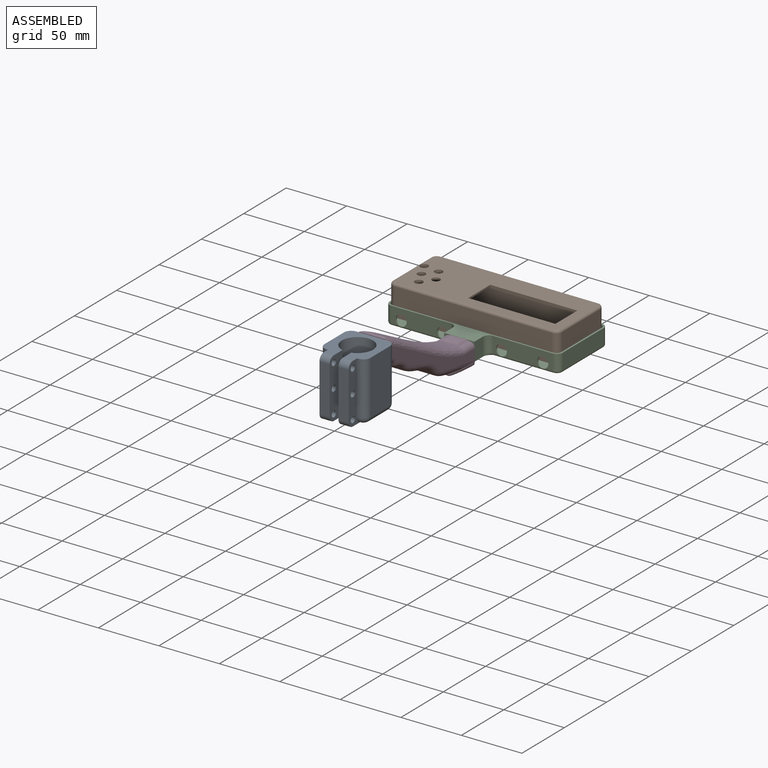
[diagram: assembled view]
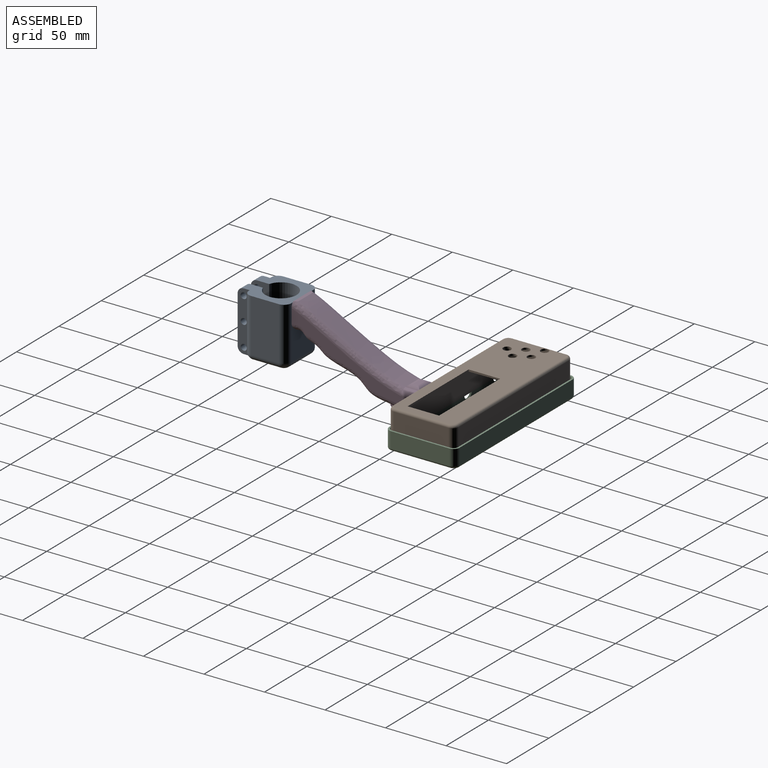
[diagram: assembled view, second angle]
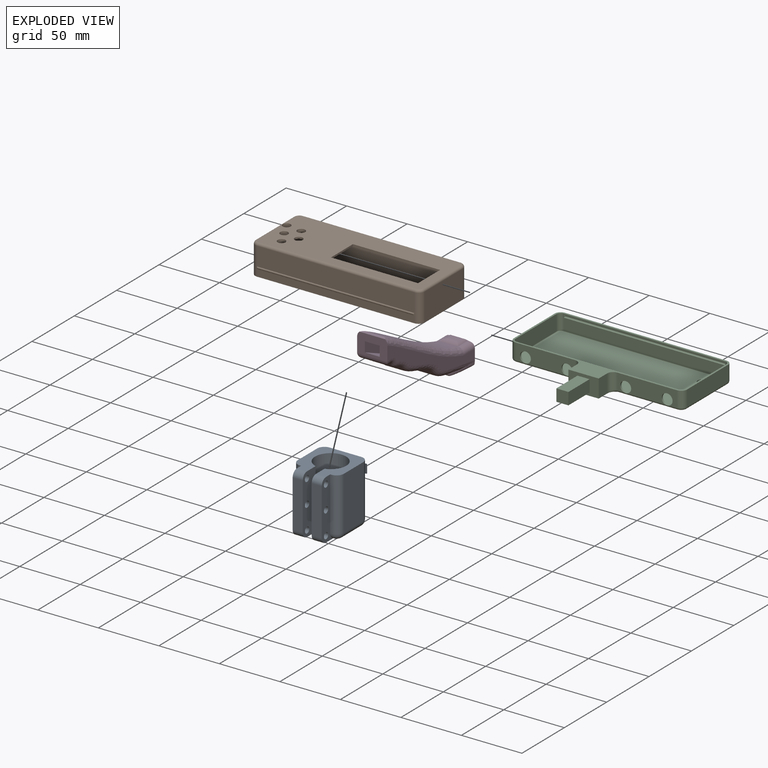
[diagram: exploded view]
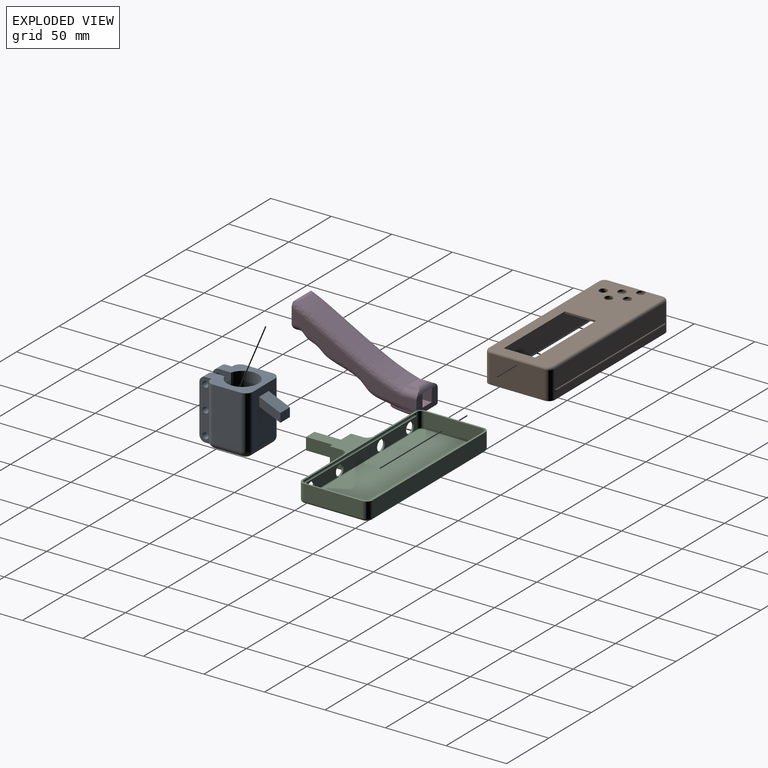
[diagram: exploded view, second angle]
ASSEMBLY  parts=4 mates=3
PART A: 43 faces, bbox 38.1x62.5x49 mm
  f0: plane 35x10.77mm, normal (0,0,-1), area 172.5mm2, adj f8,f9,f10,f21,f33,f34,f35,f36
  f1: plane 40x38.13mm, normal (0,0,1), area 829.2mm2, adj f3,f4,f5,f6,f7,f8,f9,f10
  f2: plane 35x10.98mm, normal (0,0,-1), area 177.5mm2, adj f8,f12,f13,f20,f29,f30,f31,f32
  f3: plane 44.03x1.03mm, normal (0,-1,0), area 45.5mm2, adj f1,f10,f18,f37
  f4: plane 44.03x23mm, normal (1,0,0), area 1012.8mm2, adj f1,f16,f18,f35
  f5: plane 44.03x23mm, normal (-1,0,0), area 1012.8mm2, adj f1,f15,f17,f31
  f6: plane 44.03x1.03mm, normal (0,-1,0), area 45.5mm2, adj f1,f13,f17,f29
  f7: plane 44.03x26.13mm, normal (0,1,0), area 1068.4mm2, adj f1,f15,f16,f33,f38,f39,f40,f41
  f8: cylinder r=12.9mm len=49.03mm, axis (0,0,1), area 3609.3mm2, adj f0,f1,f2,f9,f12,f33
  f9: plane 49.03x15.1mm, normal (-1,0,0), area 670.2mm2, adj f0,f1,f8,f11,f21,f22,f26,f27
  f10: plane 49.03x15mm, normal (1,0,0), area 425.3mm2, adj f0,f1,f3,f11,f21,f22,f26,f27
  f11: plane 39.03x8.36mm, normal (0,-1,0), area 326.3mm2, adj f9,f10,f21,f22
  f12: plane 49.03x15.16mm, normal (1,0,0), area 673.2mm2, adj f1,f2,f8,f14,f19,f20,f23,f24
  f13: plane 49.03x15mm, normal (-1,0,0), area 425.3mm2, adj f1,f2,f6,f14,f19,f20,f23,f24
  f14: plane 39.03x8.36mm, normal (0,-1,0), area 326.3mm2, adj f12,f13,f19,f20
  f15: cylinder r=6mm len=44.03mm, axis (0,0,-1), area 415mm2, adj f1,f5,f7,f32
  f16: cylinder r=6mm len=44.03mm, axis (0,0,1), area 415mm2, adj f1,f4,f7,f34
  f17: cylinder r=6mm len=44.03mm, axis (0,0,1), area 415mm2, adj f1,f5,f6,f30
  f18: cylinder r=6mm len=44.03mm, axis (0,0,-1), area 415mm2, adj f1,f3,f4,f36
  f19: cylinder r=5mm len=8.36mm, axis (1,0,0), area 65.7mm2, adj f1,f12,f13,f14
  f20: cylinder r=5mm len=8.36mm, axis (-1,0,0), area 65.7mm2, adj f2,f12,f13,f14
  f21: cylinder r=5mm len=8.36mm, axis (-1,0,0), area 65.7mm2, adj f0,f9,f10,f11
  f22: cylinder r=5mm len=8.36mm, axis (1,0,0), area 65.7mm2, adj f1,f9,f10,f11
  f23: cylinder r=2.52mm len=8.36mm, axis (-1,0,0), area 132.1mm2, adj f12,f13
  f24: cylinder r=2.52mm len=8.36mm, axis (-1,0,0), area 132.1mm2, adj f12,f13
  f25: cylinder r=2.52mm len=8.36mm, axis (-1,0,0), area 132.1mm2, adj f12,f13
  f26: cylinder r=2.52mm len=8.36mm, axis (-1,0,0), area 132.1mm2, adj f9,f10
  f27: cylinder r=2.52mm len=8.36mm, axis (-1,0,0), area 132.1mm2, adj f9,f10
  f28: cylinder r=2.52mm len=8.36mm, axis (-1,0,0), area 132.1mm2, adj f9,f10
  f29: cylinder r=5mm len=5mm, axis (-1,0,0), area 8.1mm2, adj f2,f6,f13,f30
  f30: torus R=1mm, axis (0,0,1), area 51.6mm2, adj f2,f17,f29,f31
  f31: cylinder r=5mm len=23mm, axis (0,1,0), area 180.6mm2, adj f2,f5,f30,f32
  f32: torus R=1mm, axis (0,0,1), area 51.6mm2, adj f2,f15,f31,f33
  f33: cylinder r=5mm len=26.13mm, axis (1,0,0), area 203.5mm2, adj f0,f2,f7,f8,f32,f34
  f34: torus R=1mm, axis (0,0,1), area 51.6mm2, adj f0,f16,f33,f35
  f35: cylinder r=5mm len=23mm, axis (0,-1,0), area 180.6mm2, adj f0,f4,f34,f36
  f36: torus R=1mm, axis (0,0,1), area 51.6mm2, adj f0,f18,f35,f37
  f37: cylinder r=5mm len=5mm, axis (-1,0,0), area 8.1mm2, adj f0,f3,f10,f36
  f38: plane 17.54x11.25mm, normal (0,0.39,0.92), area 214.4mm2, adj f7,f39,f41,f42
  f39: plane 17.54x14.72mm, normal (-1,0,0), area 127.8mm2, adj f7,f38,f40,f42
  f40: plane 17.54x11.25mm, normal (0,-0.39,-0.92), area 214.4mm2, adj f7,f39,f41,f42
  f41: plane 17.54x14.72mm, normal (1,0,0), area 127.8mm2, adj f7,f38,f40,f42
  f42: plane 11.25x7.29mm, normal (0,1,0), area 82mm2, adj f38,f39,f40,f41
PART B: 48 faces, bbox 140.8x56.2x25 mm
  f0: plane 130x15.41mm, normal (0,1,0), area 2003.3mm2, adj f9,f12,f37,f46
  f1: plane 130x5.93mm, normal (0,-1,0), area 770.9mm2, adj f3,f10,f11,f40
  f2: plane 137x52mm, normal (0,0,-1), area 5075.6mm2, adj f13,f14,f15,f16,f17,f18,f19,f20
  f3: plane 140x55mm, normal (0,0,-1), area 565.1mm2, adj f1,f4,f5,f7,f9,f10,f11,f12
  f4: plane 130x5.93mm, normal (0,1,0), area 770.9mm2, adj f3,f9,f12,f45
  f5: plane 45x23mm, normal (-1,0,0), area 1035mm2, adj f3,f9,f10,f33
  f6: plane 130x15.41mm, normal (0,-1,0), area 2003.3mm2, adj f10,f11,f30,f41
  f7: plane 45x23mm, normal (1,0,0), area 1035mm2, adj f3,f11,f12,f34
  f8: plane 136x51mm, normal (0,0,1), area 4890.8mm2, adj f21,f22,f23,f24,f25,f26,f27,f28
  f9: cylinder r=5mm len=23mm, axis (0,0,-1), area 180.6mm2, adj f0,f3,f4,f5,f35,f44
  f10: cylinder r=5mm len=23mm, axis (0,0,1), area 180.6mm2, adj f1,f3,f5,f6,f31,f39
  f11: cylinder r=5mm len=23mm, axis (0,0,-1), area 180.6mm2, adj f1,f3,f6,f7,f32,f42
  f12: cylinder r=5mm len=23mm, axis (0,0,1), area 180.6mm2, adj f0,f3,f4,f7,f36,f47
  f13: plane 130x23.5mm, normal (0,-1,0), area 3055mm2, adj f2,f3,f17,f20
  f14: plane 45x23.5mm, normal (1,0,0), area 1057.5mm2, adj f2,f3,f17,f18
  f15: plane 130x23.5mm, normal (0,1,0), area 3055mm2, adj f2,f3,f18,f19
  f16: plane 45x23.5mm, normal (-1,0,0), area 1057.5mm2, adj f2,f3,f19,f20
  f17: cylinder r=3.5mm len=23.5mm, axis (0,0,-1), area 129.2mm2, adj f2,f3,f13,f14
  f18: cylinder r=3.5mm len=23.5mm, axis (0,0,1), area 129.2mm2, adj f2,f3,f14,f15
  f19: cylinder r=3.5mm len=23.5mm, axis (0,0,-1), area 129.2mm2, adj f2,f3,f15,f16
  f20: cylinder r=3.5mm len=23.5mm, axis (0,0,1), area 129.2mm2, adj f2,f3,f13,f16
  f21: cylinder r=3.25mm len=6.5mm, axis (0,0,1), area 30.6mm2, adj f2,f8
  f22: cylinder r=3.25mm len=6.5mm, axis (0,0,1), area 30.6mm2, adj f2,f8
  f23: cylinder r=3.25mm len=6.5mm, axis (0,0,1), area 30.6mm2, adj f2,f8
  f24: cylinder r=3.25mm len=6.5mm, axis (0,0,1), area 30.6mm2, adj f2,f8,f33
  f25: cylinder r=3.25mm len=6.5mm, axis (0,0,1), area 30.6mm2, adj f2,f8
  f26: plane 26x1.5mm, normal (1,0,0), area 39mm2, adj f2,f8,f27,f28
  f27: plane 72x1.5mm, normal (0,-1,0), area 108mm2, adj f2,f8,f26,f29
  f28: plane 72x1.5mm, normal (0,1,0), area 108mm2, adj f2,f8,f26,f29
  f29: plane 26x1.5mm, normal (-1,0,0), area 39mm2, adj f2,f8,f27,f28
  f30: cylinder r=2mm len=130mm, axis (1,0,0), area 408.4mm2, adj f6,f8,f31,f32
  f31: torus R=3mm, axis (0,0,1), area 21.1mm2, adj f8,f10,f30,f33
  f32: torus R=3mm, axis (0,0,1), area 21.1mm2, adj f8,f11,f30,f34
  f33: cylinder r=2mm len=45mm, axis (0,-1,0), area 141mm2, adj f5,f8,f24,f31,f35
  f34: cylinder r=2mm len=45mm, axis (0,1,0), area 141.4mm2, adj f7,f8,f32,f36
  f35: torus R=3mm, axis (0,0,1), area 21.1mm2, adj f8,f9,f33,f37
  f36: torus R=3mm, axis (0,0,1), area 21.1mm2, adj f8,f12,f34,f37
  f37: cylinder r=2mm len=130mm, axis (-1,0,0), area 408.4mm2, adj f0,f8,f35,f36
  f38: plane 128.53x0.19mm, normal (0,-1,0), area 24.5mm2, adj f39,f40,f41,f42
  f39: cylinder r=0.75mm len=1.66mm, axis (0,0,-1), area 1.1mm2, adj f10,f38,f40,f41
  f40: cylinder r=0.75mm len=130mm, axis (1,0,0), area 132.8mm2, adj f1,f38,f39,f42
  f41: cylinder r=0.75mm len=130mm, axis (1,0,0), area 132.8mm2, adj f6,f38,f39,f42
  f42: cylinder r=0.75mm len=1.66mm, axis (0,0,1), area 1.1mm2, adj f11,f38,f40,f41
  f43: plane 128.53x0.19mm, normal (0,1,0), area 24.5mm2, adj f44,f45,f46,f47
  f44: cylinder r=0.75mm len=1.66mm, axis (0,0,-1), area 1.1mm2, adj f9,f43,f45,f46
  f45: cylinder r=0.75mm len=130mm, axis (1,0,0), area 132.7mm2, adj f4,f43,f44,f47
  f46: cylinder r=0.75mm len=130mm, axis (1,0,0), area 132.7mm2, adj f0,f43,f44,f47
  f47: cylinder r=0.75mm len=1.66mm, axis (0,0,1), area 1.1mm2, adj f12,f43,f45,f46
PART C: 65 faces, bbox 144x98.6x24.4 mm
  f0: cylinder r=2mm len=49.1mm, axis (1,0,0), area 151.5mm2, adj f8,f16,f22,f46,f62,f63
  f1: plane 133.2x10.47mm, normal (0,1,0), area 1084.5mm2, adj f2,f5,f6,f7,f33,f36,f44,f49
  f2: cylinder r=0.55mm len=55.55mm, axis (1,0,0), area 44.8mm2, adj f1,f5,f7,f37,f62,f63
  f3: plane 133.2x9.92mm, normal (0,-1,0), area 1321.2mm2, adj f34,f35,f40,f52
  f4: plane 133.2x1.08mm, normal (0,1,0), area 144mm2, adj f17,f33,f36,f49
  f5: plane 0.55x0.55mm, normal (-1,0,0), area 0.1mm2, adj f1,f2,f7
  f6: plane 0.55x0.55mm, normal (1,0,0), area 0.1mm2, adj f1,f7,f44
  f7: plane 139.2x54.75mm, normal (0,0,1), area 7470.5mm2, adj f1,f2,f5,f6,f37,f38,f39,f40
  f8: plane 49.1x13mm, normal (0,-1,0), area 513.8mm2, adj f0,f17,f21,f45,f62,f63
  f9: plane 15x10.29mm, normal (1,0,0), area 150.2mm2, adj f10,f16,f17,f45,f46
  f10: plane 25x15mm, normal (0,-1,0), area 275mm2, adj f9,f11,f16,f17,f55,f56,f57,f58
  f11: plane 15x10.29mm, normal (-1,0,0), area 150.2mm2, adj f10,f16,f17,f47,f48
  f12: plane 49.1x13mm, normal (0,-1,0), area 513.8mm2, adj f17,f18,f29,f47,f60,f61
  f13: plane 48.2x13mm, normal (-1,0,0), area 626.6mm2, adj f17,f18,f19,f27
  f14: plane 133.2x13mm, normal (0,1,0), area 1731.6mm2, adj f17,f19,f20,f25
  f15: plane 48.2x13mm, normal (1,0,0), area 626.6mm2, adj f17,f20,f21,f23
  f16: plane 139.2x71.2mm, normal (0,0,-1), area 7904.2mm2, adj f0,f9,f10,f11,f22,f23,f24,f25
  f17: plane 143.2x73.2mm, normal (0,0,1), area 950.7mm2, adj f4,f8,f9,f10,f11,f12,f13,f14
  f18: cylinder r=5mm len=13mm, axis (0,0,1), area 102.1mm2, adj f12,f13,f17,f28
  f19: cylinder r=5mm len=13mm, axis (0,0,1), area 102.1mm2, adj f13,f14,f17,f26
  f20: cylinder r=5mm len=13mm, axis (0,0,1), area 102.1mm2, adj f14,f15,f17,f24
  f21: cylinder r=5mm len=13mm, axis (0,0,1), area 102.1mm2, adj f8,f15,f17,f22
  f22: torus R=3mm, axis (0,0,-1), area 21.1mm2, adj f0,f16,f21,f23
  f23: cylinder r=2mm len=48.2mm, axis (0,1,0), area 151.4mm2, adj f15,f16,f22,f24
  f24: torus R=3mm, axis (0,0,-1), area 21.1mm2, adj f16,f20,f23,f25
  f25: cylinder r=2mm len=133.2mm, axis (-1,0,0), area 418.5mm2, adj f14,f16,f24,f26
  f26: torus R=3mm, axis (0,0,-1), area 21.1mm2, adj f16,f19,f25,f27
  f27: cylinder r=2mm len=48.2mm, axis (0,-1,0), area 151.4mm2, adj f13,f16,f26,f28
  f28: torus R=3mm, axis (0,0,-1), area 21.1mm2, adj f16,f18,f27,f29
  f29: cylinder r=2mm len=49.1mm, axis (1,0,0), area 151.5mm2, adj f12,f16,f28,f48,f60,f61
  f30: plane 48.2x13mm, normal (1,0,0), area 626.6mm2, adj f17,f33,f34,f42
  f31: plane 133.2x1.08mm, normal (0,-1,0), area 144mm2, adj f17,f34,f35,f52
  f32: plane 48.2x13mm, normal (-1,0,0), area 626.6mm2, adj f17,f35,f36,f38
  f33: cylinder r=3.55mm len=13mm, axis (0,0,1), area 72.5mm2, adj f1,f4,f17,f30,f43,f50
  f34: cylinder r=3.55mm len=13mm, axis (0,0,1), area 72.5mm2, adj f3,f17,f30,f31,f41,f53
  f35: cylinder r=3.55mm len=13mm, axis (0,0,1), area 72.5mm2, adj f3,f17,f31,f32,f39,f54
  f36: cylinder r=3.55mm len=13mm, axis (0,0,1), area 72.5mm2, adj f1,f4,f17,f32,f37,f51
  f37: torus R=3mm, axis (0,0,-1), area 4.5mm2, adj f2,f7,f36,f38
  f38: cylinder r=0.55mm len=48.2mm, axis (0,1,0), area 41.6mm2, adj f7,f32,f37,f39
  f39: torus R=3mm, axis (0,0,-1), area 4.5mm2, adj f7,f35,f38,f40
  f40: cylinder r=0.55mm len=133.2mm, axis (-1,0,0), area 115.1mm2, adj f3,f7,f39,f41
  f41: torus R=3mm, axis (0,0,-1), area 4.5mm2, adj f7,f34,f40,f42
  f42: cylinder r=0.55mm len=48.2mm, axis (0,-1,0), area 41.6mm2, adj f7,f30,f41,f43
  f43: torus R=3mm, axis (0,0,-1), area 4.5mm2, adj f7,f33,f42,f44
  f44: cylinder r=0.55mm len=55.55mm, axis (1,0,0), area 44.8mm2, adj f1,f6,f7,f43,f60,f61
  f45: cylinder r=5mm len=13mm, axis (0,0,1), area 102.1mm2, adj f8,f9,f17,f46
  f46: torus R=7mm, axis (-1,0,0), area 17.8mm2, adj f0,f9,f16,f45
  f47: cylinder r=5mm len=13mm, axis (0,0,-1), area 102.1mm2, adj f11,f12,f17,f48
  f48: torus R=7mm, axis (-1,0,0), area 17.8mm2, adj f11,f16,f29,f47
  f49: cylinder r=1mm len=133.2mm, axis (1,0,0), area 415.5mm2, adj f1,f4,f50,f51
  f50: cylinder r=1mm len=2mm, axis (0,0,1), area 1.6mm2, adj f33,f49
  f51: cylinder r=1mm len=2mm, axis (0,0,-1), area 1.6mm2, adj f36,f49
  f52: cylinder r=1mm len=133.2mm, axis (1,0,0), area 415.3mm2, adj f3,f31,f53,f54
  f53: cylinder r=1mm len=2mm, axis (0,0,1), area 1.6mm2, adj f34,f52
  f54: cylinder r=1mm len=2mm, axis (0,0,-1), area 1.6mm2, adj f35,f52
  f55: plane 25x10mm, normal (0,0,-1), area 250mm2, adj f10,f56,f58,f59
  f56: plane 25x10mm, normal (1,0,0), area 250mm2, adj f10,f55,f57,f59
  f57: plane 25x10mm, normal (0,0,1), area 250mm2, adj f10,f56,f58,f59
  f58: plane 25x10mm, normal (-1,0,0), area 250mm2, adj f10,f55,f57,f59
  f59: plane 10x10mm, normal (0,-1,0), area 100mm2, adj f55,f56,f57,f58
  f60: cylinder r=4.5mm len=9mm, axis (0,-1,0), area 41mm2, adj f1,f12,f29,f44
  f61: cylinder r=4.5mm len=9mm, axis (0,-1,0), area 41mm2, adj f1,f12,f29,f44
  f62: cylinder r=4.5mm len=9mm, axis (0,-1,0), area 41mm2, adj f0,f1,f2,f8
  f63: cylinder r=4.5mm len=9mm, axis (0,-1,0), area 41mm2, adj f0,f1,f2,f8
  f64: cylinder r=5mm len=10mm, axis (0,0,-1), area 45.6mm2, adj f7,f16
PART D: 38 faces, bbox 26.1x117.8x63.7 mm
  f0: plane 103.27x50.43mm, normal (1,0,0), area 927.7mm2, adj f6,f10,f14,f15,f16,f17
  f1: plane 25x10.8mm, normal (-1,0,0), area 270mm2, adj f2,f4,f6,f7,f32
  f2: plane 25x10.8mm, normal (0,0,1), area 270mm2, adj f1,f3,f6,f7
  f3: plane 25x10.8mm, normal (1,0,0), area 270mm2, adj f2,f4,f6,f7,f32
  f4: plane 24.92x10.8mm, normal (0,0,-1), area 269.1mm2, adj f1,f3,f7,f32
  f5: plane 103.26x50.43mm, normal (-1,0,0), area 927.7mm2, adj f6,f10,f13,f15,f18,f19
  f6: plane 25.03x13.03mm, normal (0,1,0), area 217.1mm2, adj f0,f1,f2,f3,f5,f13,f14,f16
  f7: plane 10.8x10.8mm, normal (0,1,0), area 116.6mm2, adj f1,f2,f3,f4
  f8: extruded ~87.9x40.89mm, area 1457.3mm2, adj f9,f17,f19,f29
  f9: plane 22.37x3.95mm, normal (0,0,1), area 55.1mm2, adj f8,f10,f17,f19
  f10: plane 25.2x16.27mm, normal (0,-1,0), area 294.5mm2, adj f0,f5,f9,f15,f17,f19,f34,f35
  f11: extruded ~73.02x34.77mm, area 1235.1mm2, adj f12,f13,f14,f15
  f12: cylinder r=5mm len=16.5mm, axis (1,0,0), area 11.8mm2, adj f11,f13,f14,f21
  f13: bspline ~115.9x45.21mm, area 763.1mm2, adj f5,f6,f11,f12,f15,f22
  f14: bspline ~115.9x45.22mm, area 763.1mm2, adj f0,f6,f11,f12,f15,f20
  f15: cylinder r=5mm len=25mm, axis (1,0,0), area 168.3mm2, adj f0,f5,f10,f11,f13,f14
  f16: cylinder r=5mm len=13.19mm, axis (0,1,0), area 98mm2, adj f0,f6,f17,f30,f32
  f17: bspline ~97.91x48.37mm, area 780.3mm2, adj f0,f8,f9,f10,f16
  f18: cylinder r=5mm len=13.19mm, axis (0,-1,0), area 98mm2, adj f5,f6,f19,f31,f32
  f19: bspline ~99.95x49mm, area 780.3mm2, adj f5,f8,f9,f10,f18
  f20: extruded ~24.62x4.09mm, area 25.2mm2, adj f6,f14,f21,f25
  f21: plane 16.5x1mm, normal (0,-1,0), area 16.5mm2, adj f12,f20,f22,f27
  f22: extruded ~24.62x4.09mm, area 25.2mm2, adj f6,f13,f21,f26
  f23: plane 20.63x20.52mm, normal (0,0,-1), area 380.2mm2, adj f24,f25,f26,f27
  f24: cylinder r=2mm len=24.69mm, axis (1,0,0), area 71mm2, adj f6,f23,f25,f26
  f25: bspline ~25.99x5.6mm, area 72.3mm2, adj f20,f23,f24,f27
  f26: bspline ~25.37x5.58mm, area 72.3mm2, adj f22,f23,f24,f27
  f27: cylinder r=2mm len=16.5mm, axis (1,0,0), area 48.5mm2, adj f21,f23,f25,f26
  f28: plane 7x3.5mm, normal (0,0,1), area 24.5mm2, adj f29,f30,f31,f32
  f29: cylinder r=5mm len=15mm, axis (1,0,0), area 51mm2, adj f8,f28,f30,f31
  f30: cylinder r=5mm len=11.5mm, axis (0,1,0), area 34.8mm2, adj f16,f28,f29,f32
  f31: cylinder r=5mm len=11.5mm, axis (0,-1,0), area 34.8mm2, adj f18,f28,f29,f32
  f32: cylinder r=5mm len=24.17mm, axis (-1,0,0), area 110.3mm2, adj f1,f3,f4,f6,f16,f18,f28,f30
  f33: plane 12.29x8.33mm, normal (0,-1,0), area 102.4mm2, adj f34,f35,f36,f37
  f34: plane 17.54x15.76mm, normal (-1,0,0), area 146mm2, adj f10,f33,f35,f37
  f35: plane 17.54x12.29mm, normal (0,-0.39,-0.92), area 234.2mm2, adj f10,f33,f34,f36
  f36: plane 17.54x15.76mm, normal (1,0,0), area 146mm2, adj f10,f33,f35,f37
  f37: plane 17.54x12.29mm, normal (0,0.39,0.92), area 234.2mm2, adj f10,f33,f34,f36
PLACE A t=(0,-28.6,-0.52)mm
PLACE B t=(-0.4,-28.9,1.25)mm
PLACE C t=(-0.4,-28.6,0)mm
PLACE D t=(0,-28.6,0)mm
MATE fastened C.f58 <-> D.f3  axis (-1,0,0) through (35.56,-94.49,-22.5)mm
MATE fastened B.f40 <-> C.f49  axis (1,0,0) through (40.56,-65.54,-17.08)mm
MATE fastened A.f40 <-> D.f37  axis (0,-0.39,-0.92) through (40.96,-176.48,7.87)mm
